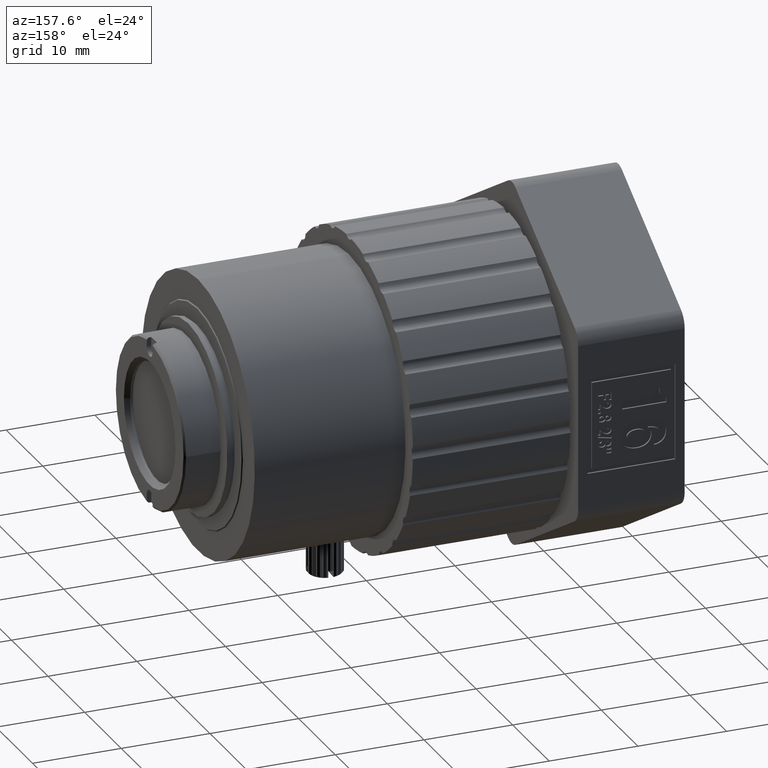
[diagram: clean part render]
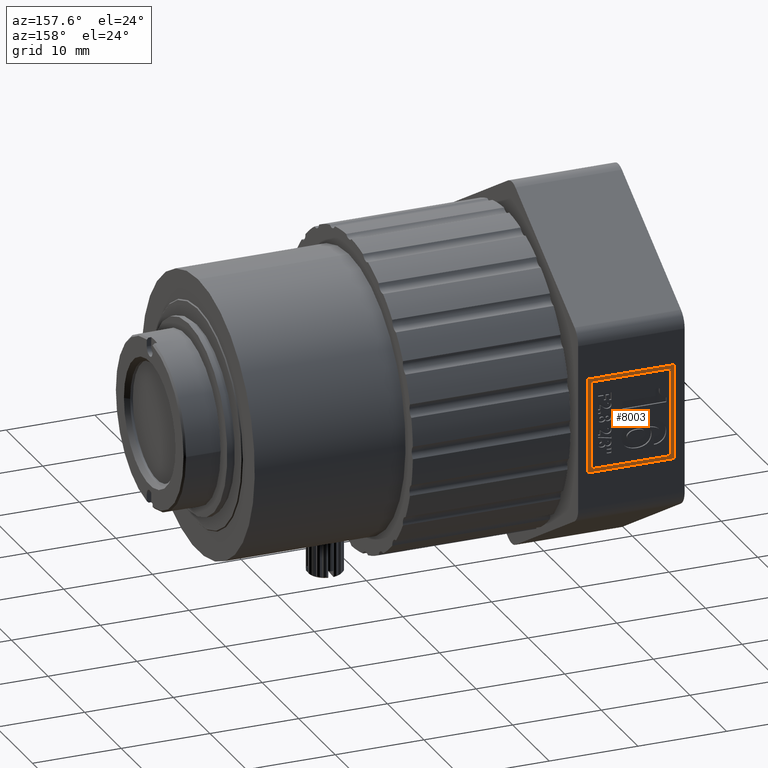
[diagram: same view with one face highlighted and labeled with its STEP entity id]
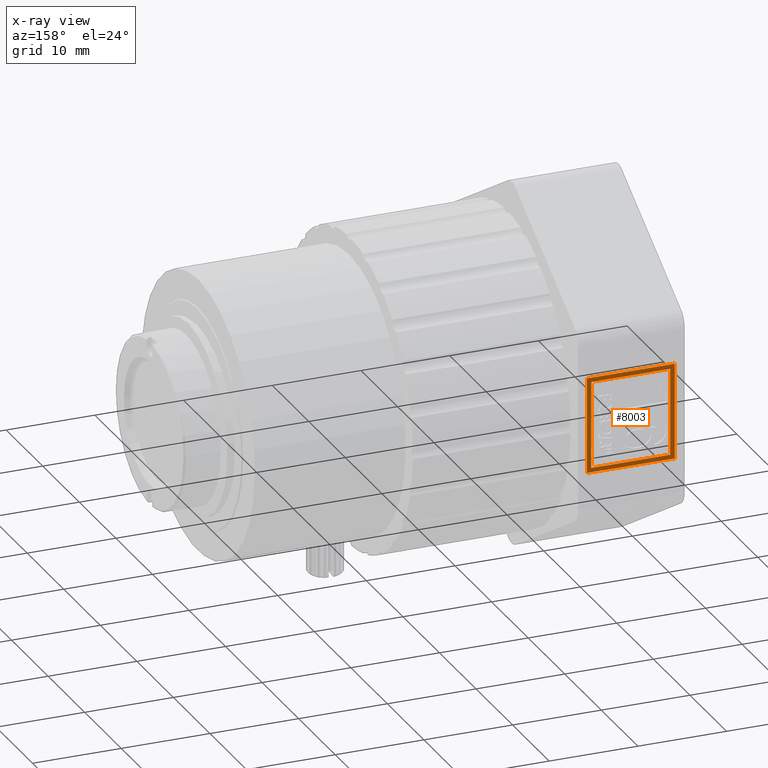
[diagram: x-ray of the same camera — body ghosted, the highlighted face saturated]
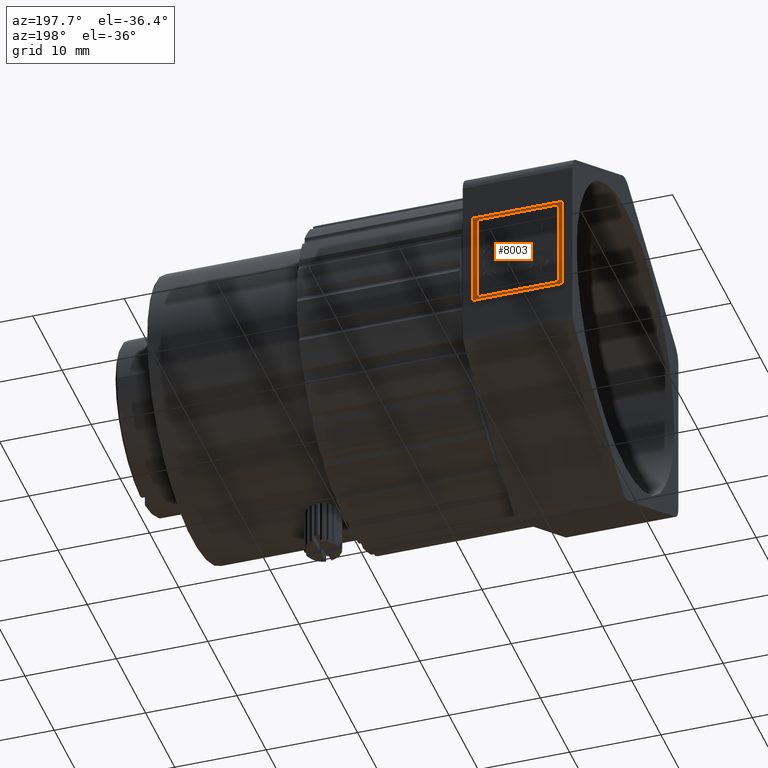
[diagram: same view with one face highlighted and labeled with its STEP entity id]
A machine part, auxiliary view. The second image highlights one B-rep face of the part: STEP entity #8003.
The next image is the same camera in x-ray: the body ghosted, the highlighted face saturated — about 0% of this face is hidden behind the body in this view.
A second angle (auxiliary view) of the same face is appended — the face is thin or edge-on in the first view.
In plain terms, the highlighted planar face has unit normal (0, 1, 0).
Its self-contained STEP definition (entity closure, byte-faithful):
#46 = CARTESIAN_POINT ( 'NONE',  ( -18.22110075506611082, 17.29413145530500628, 4.899999999999888445 ) ) ;
#550 = DIRECTION ( 'NONE',  ( 1.000000000000000000, 0.000000000000000000, -0.000000000000000000 ) ) ;
#630 = CARTESIAN_POINT ( 'NONE',  ( -17.72110075506638793, 17.29413145530500628, 5.399999999999889333 ) ) ;
#681 = DIRECTION ( 'NONE',  ( 0.000000000000000000, -0.000000000000000000, 1.000000000000000000 ) ) ;
#819 = VECTOR ( 'NONE', #5200, 1000.000000000000000 ) ;
#1012 = LINE ( 'NONE', #14591, #5389 ) ;
#1161 = CARTESIAN_POINT ( 'NONE',  ( -18.22110075506655491, 17.29413145530500628, -4.900000000000109601 ) ) ;
#1217 = CARTESIAN_POINT ( 'NONE',  ( -27.12110075506624085, 17.29413145530500628, 4.899999999999889333 ) ) ;
#1741 = LINE ( 'NONE', #630, #819 ) ;
#1768 = CARTESIAN_POINT ( 'NONE',  ( -18.22110075506611082, 17.29413145530500628, 10.47890738573664748 ) ) ;
#2507 = VERTEX_POINT ( 'NONE', #6814 ) ;
#2697 = EDGE_LOOP ( 'NONE', ( #3860, #11473, #10602, #11119 ) ) ;
#2955 = DIRECTION ( 'NONE',  ( 0.000000000000000000, -0.000000000000000000, 1.000000000000000000 ) ) ;
#3123 = VERTEX_POINT ( 'NONE', #14142 ) ;
#3334 = VERTEX_POINT ( 'NONE', #1161 ) ;
#3504 = DIRECTION ( 'NONE',  ( -0.000000000000000000, 0.000000000000000000, -1.000000000000000000 ) ) ;
#3860 = ORIENTED_EDGE ( 'NONE', *, *, #11953, .T. ) ;
#4048 = PLANE ( 'NONE',  #5599 ) ;
#4142 = VECTOR ( 'NONE', #11283, 1000.000000000000000 ) ;
#4404 = CARTESIAN_POINT ( 'NONE',  ( -27.12110075506624085, 17.29413145530500628, -4.900000000000108713 ) ) ;
#4707 = LINE ( 'NONE', #8149, #12265 ) ;
#4822 = LINE ( 'NONE', #4897, #6537 ) ;
#4897 = CARTESIAN_POINT ( 'NONE',  ( 38.77989565996298182, 17.29413145530500628, -4.900000000000108713 ) ) ;
#4929 = EDGE_CURVE ( 'NONE', #7258, #3334, #4822, .T. ) ;
#5010 = EDGE_CURVE ( 'NONE', #5108, #3123, #1741, .T. ) ;
#5108 = VERTEX_POINT ( 'NONE', #6971 ) ;
#5200 = DIRECTION ( 'NONE',  ( 1.000000000000000000, 0.000000000000000000, -8.761229676650523649E-17 ) ) ;
#5389 = VECTOR ( 'NONE', #5661, 1000.000000000000000 ) ;
#5467 = LINE ( 'NONE', #13474, #5623 ) ;
#5599 = AXIS2_PLACEMENT_3D ( 'NONE', #7639, #11083, #681 ) ;
#5623 = VECTOR ( 'NONE', #13404, 1000.000000000000000 ) ;
#5661 = DIRECTION ( 'NONE',  ( 0.000000000000000000, 0.000000000000000000, 1.000000000000000000 ) ) ;
#5895 = VERTEX_POINT ( 'NONE', #46 ) ;
#6537 = VECTOR ( 'NONE', #550, 1000.000000000000000 ) ;
#6767 = VECTOR ( 'NONE', #2955, 1000.000000000000000 ) ;
#6790 = EDGE_CURVE ( 'NONE', #5895, #12380, #10238, .T. ) ;
#6814 = CARTESIAN_POINT ( 'NONE',  ( -17.72110075506638793, 17.29413145530500628, -5.400000000000107825 ) ) ;
#6971 = CARTESIAN_POINT ( 'NONE',  ( -27.62110075506640783, 17.29413145530500628, 5.399999999999890221 ) ) ;
#6986 = EDGE_CURVE ( 'NONE', #3334, #5895, #8582, .T. ) ;
#7258 = VERTEX_POINT ( 'NONE', #4404 ) ;
#7639 = CARTESIAN_POINT ( 'NONE',  ( 38.77989565996298182, 17.29413145530500628, 10.47890738573664748 ) ) ;
#7985 = CARTESIAN_POINT ( 'NONE',  ( 38.77989565996298182, 17.29413145530500628, 4.899999999999888445 ) ) ;
#8003 = ADVANCED_FACE ( 'NONE', ( #9880, #12062 ), #4048, .T. ) ;
#8149 = CARTESIAN_POINT ( 'NONE',  ( -17.72110075506638793, 17.29413145530500628, -5.400000000000112266 ) ) ;
#8526 = ORIENTED_EDGE ( 'NONE', *, *, #4929, .T. ) ;
#8582 = LINE ( 'NONE', #1768, #6767 ) ;
#8673 = ORIENTED_EDGE ( 'NONE', *, *, #6986, .T. ) ;
#9880 = FACE_OUTER_BOUND ( 'NONE', #2697, .T. ) ;
#10193 = VERTEX_POINT ( 'NONE', #13508 ) ;
#10238 = LINE ( 'NONE', #7985, #4142 ) ;
#10285 = ORIENTED_EDGE ( 'NONE', *, *, #10517, .T. ) ;
#10483 = EDGE_CURVE ( 'NONE', #2507, #10193, #4707, .T. ) ;
#10517 = EDGE_CURVE ( 'NONE', #12380, #7258, #12724, .T. ) ;
#10602 = ORIENTED_EDGE ( 'NONE', *, *, #13260, .T. ) ;
#10877 = ORIENTED_EDGE ( 'NONE', *, *, #6790, .T. ) ;
#11083 = DIRECTION ( 'NONE',  ( 0.000000000000000000, 1.000000000000000000, 0.000000000000000000 ) ) ;
#11119 = ORIENTED_EDGE ( 'NONE', *, *, #5010, .T. ) ;
#11283 = DIRECTION ( 'NONE',  ( -1.000000000000000000, -0.000000000000000000, 0.000000000000000000 ) ) ;
#11365 = CARTESIAN_POINT ( 'NONE',  ( -27.12110075506624085, 17.29413145530500628, 10.47890738573664748 ) ) ;
#11473 = ORIENTED_EDGE ( 'NONE', *, *, #10483, .T. ) ;
#11953 = EDGE_CURVE ( 'NONE', #3123, #2507, #5467, .T. ) ;
#12062 = FACE_BOUND ( 'NONE', #14592, .T. ) ;
#12265 = VECTOR ( 'NONE', #12653, 1000.000000000000000 ) ;
#12380 = VERTEX_POINT ( 'NONE', #1217 ) ;
#12653 = DIRECTION ( 'NONE',  ( -1.000000000000000000, 0.000000000000000000, 1.752245935330104730E-16 ) ) ;
#12724 = LINE ( 'NONE', #11365, #12740 ) ;
#12740 = VECTOR ( 'NONE', #3504, 1000.000000000000000 ) ;
#13260 = EDGE_CURVE ( 'NONE', #10193, #5108, #1012, .T. ) ;
#13404 = DIRECTION ( 'NONE',  ( 0.000000000000000000, 0.000000000000000000, -1.000000000000000000 ) ) ;
#13474 = CARTESIAN_POINT ( 'NONE',  ( -17.72110075506638793, 17.29413145530500628, 5.399999999999889333 ) ) ;
#13508 = CARTESIAN_POINT ( 'NONE',  ( -27.62110075506640783, 17.29413145530500628, -5.400000000000107825 ) ) ;
#14142 = CARTESIAN_POINT ( 'NONE',  ( -17.72110075506638793, 17.29413145530500628, 5.399999999999889333 ) ) ;
#14591 = CARTESIAN_POINT ( 'NONE',  ( -27.62110075506640783, 17.29413145530500628, 5.399999999999890221 ) ) ;
#14592 = EDGE_LOOP ( 'NONE', ( #10877, #10285, #8526, #8673 ) ) ;